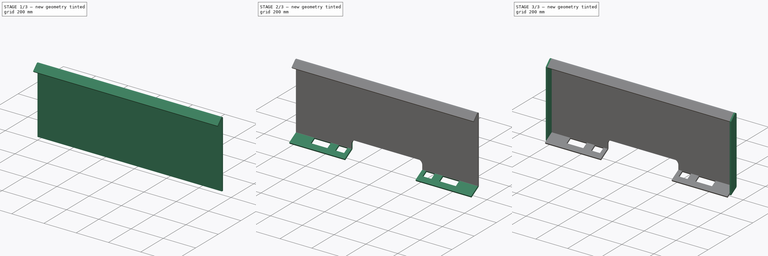
[diagram: build sequence overview — one tinted view per stage of 3, left to right]
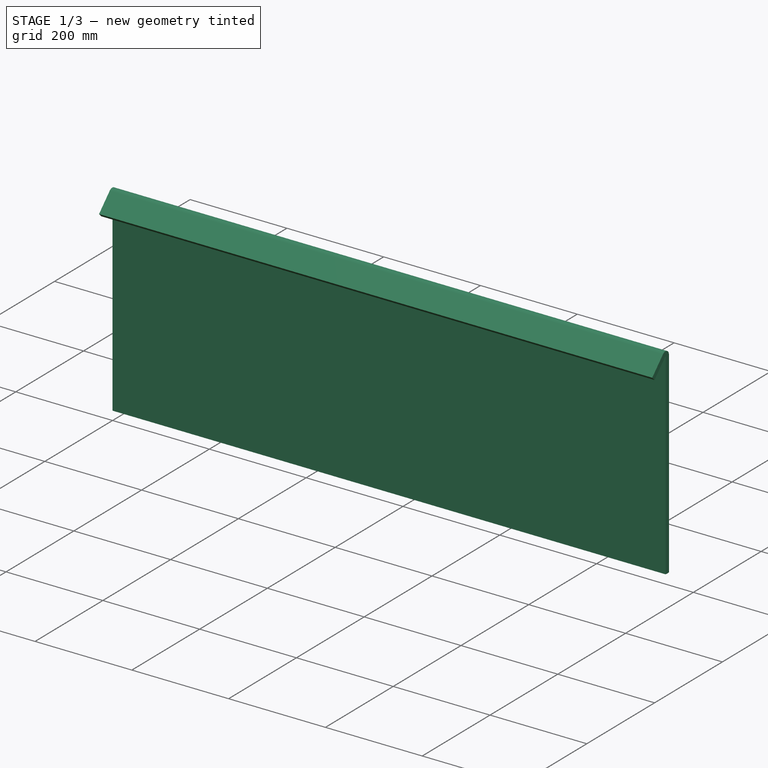
[diagram: stage 1 of 3 — iso view after this stage's code; geometry added in this stage tinted green]
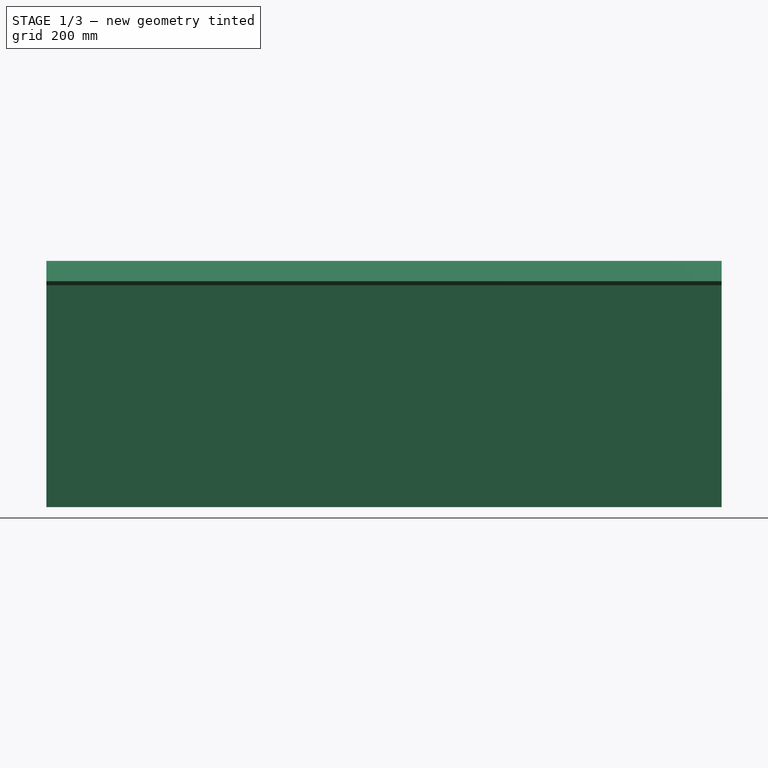
[diagram: stage 1 of 3 — front view after this stage's code; geometry added in this stage tinted green]
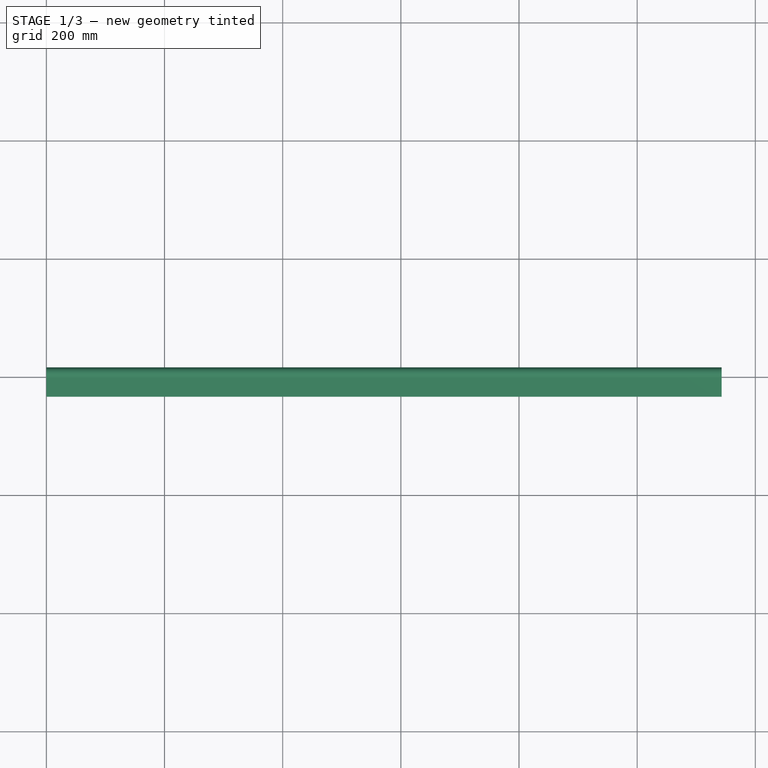
[diagram: stage 1 of 3 — top view after this stage's code; geometry added in this stage tinted green]
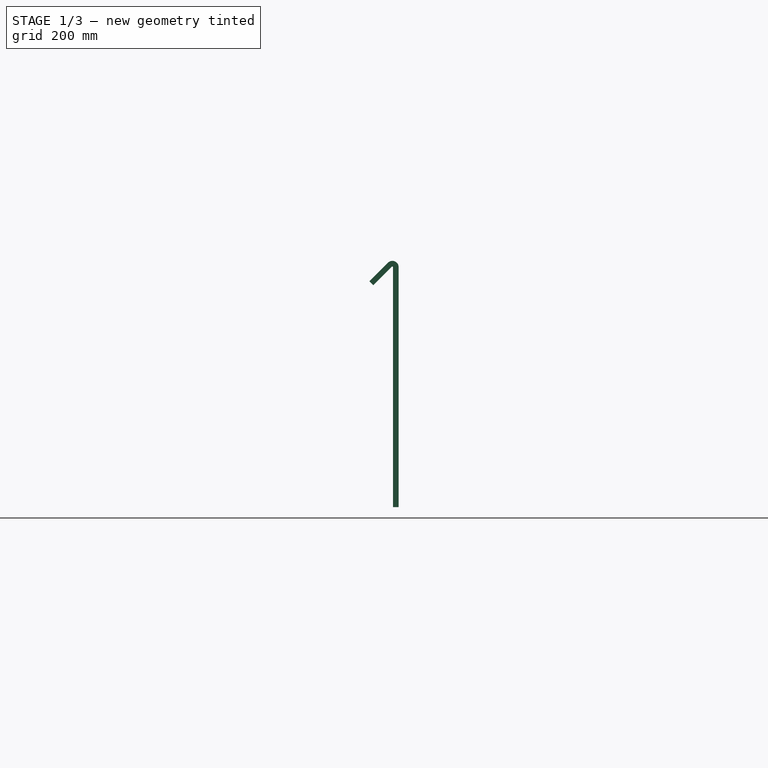
[diagram: stage 1 of 3 — right view after this stage's code; geometry added in this stage tinted green]
FCSTD DOCUMENT  (FreeCAD 0.16R6712 (Git))
Label: LT_45in_FQA
License: All rights reserved
LicenseURL: http://en.wikipedia.org/wiki/All_rights_reserved
objects: Sketcher::SketchObject×4, Part::FeaturePython×2, PartDesign::Pocket×2, PartDesign::Pad×2, Part::Box×1, Part::Feature×1
note: 16 computed .brp shape members not serialized (recipe doc carries the construction recipe); baked Part::Feature solids carry a one-line shape summary decoded from their .brp

FEATURE [Part::Box] Box  label="Cube"
  Height = 406.4
  Length = 1143
  Width = 9.525
FEATURE [Part::FeaturePython] Bend  # WARN: FeaturePython — macro-defined, semantics opaque (R4)
  angle = 135
  baseObject = -> Box [Face6]
  gap1 = 0
  gap2 = 0
  invert = true
  length = 44.45
  radius = 1
  reliefd = 0
  reliefw = 0
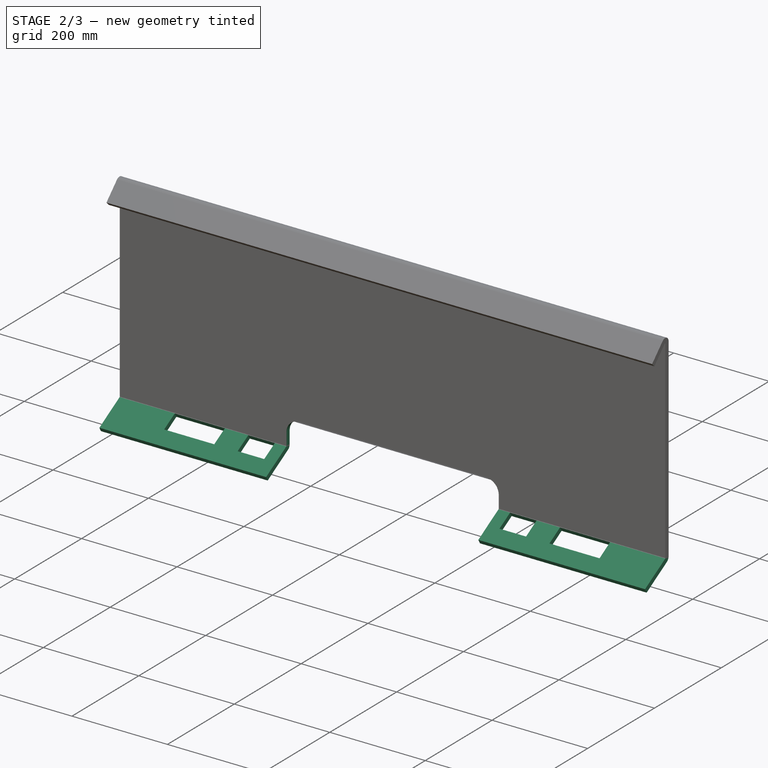
[diagram: stage 2 of 3 — iso view after this stage's code; geometry added in this stage tinted green]
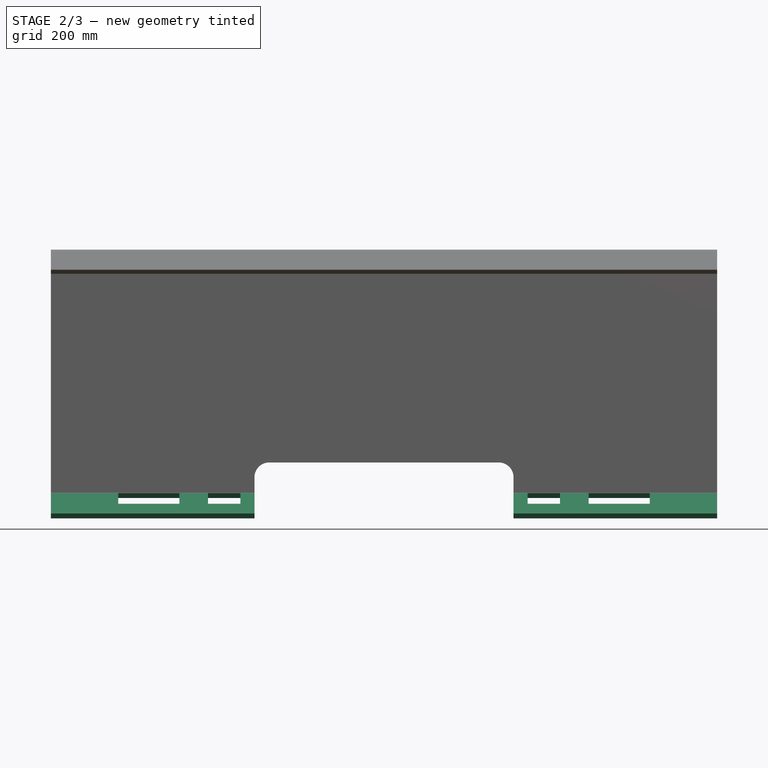
[diagram: stage 2 of 3 — front view after this stage's code; geometry added in this stage tinted green]
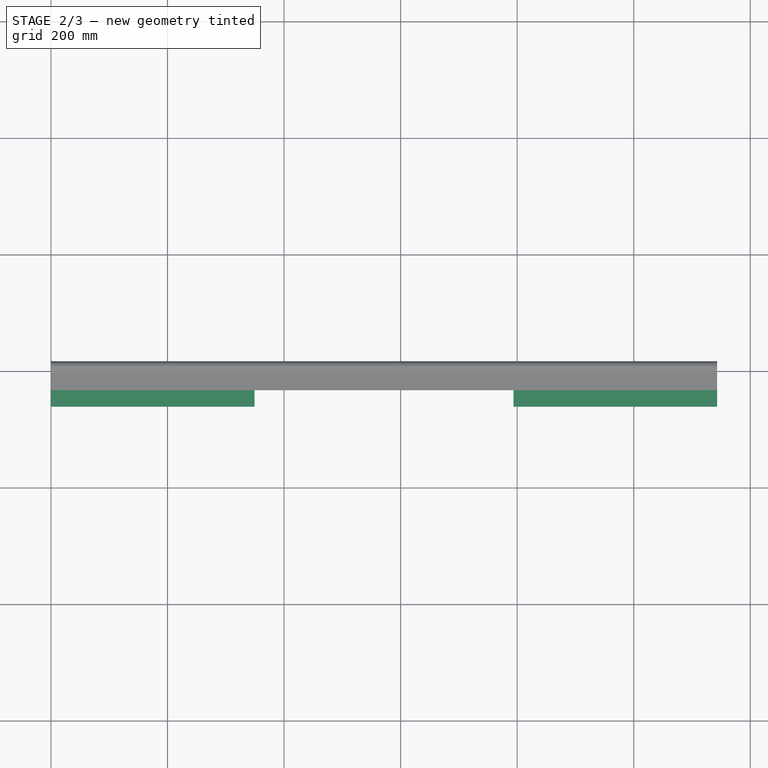
[diagram: stage 2 of 3 — top view after this stage's code; geometry added in this stage tinted green]
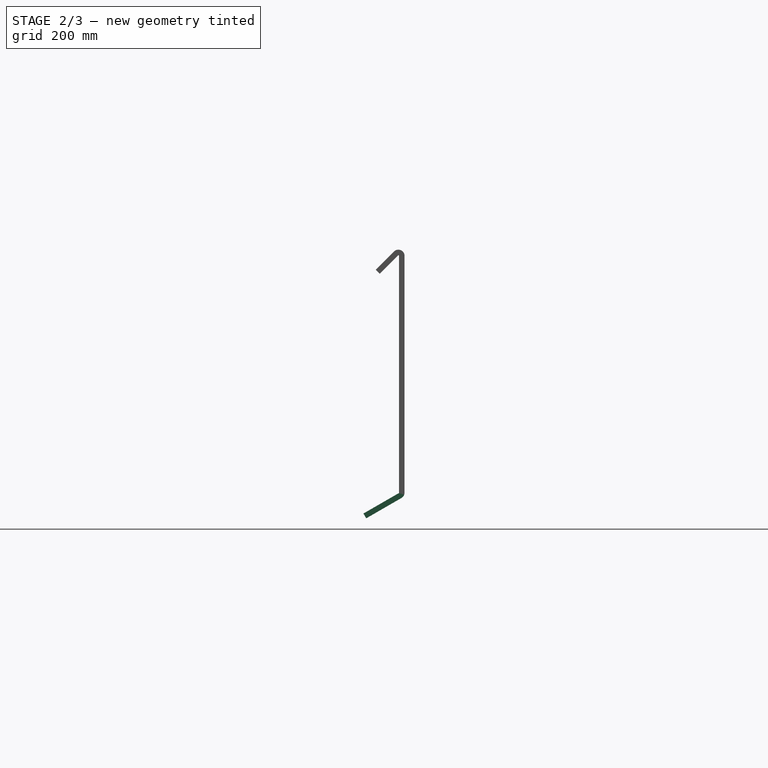
[diagram: stage 2 of 3 — right view after this stage's code; geometry added in this stage tinted green]
FEATURE [Part::FeaturePython] Bend001  # WARN: FeaturePython — macro-defined, semantics opaque (R4)
  angle = 60
  baseObject = -> Bend [Face14]
  gap1 = 0
  gap2 = 0
  invert = true
  length = 69.85
  radius = 0.999998
  reliefd = 0.999998
  reliefw = 0.5
FEATURE [Sketcher::SketchObject] Sketch003
  Placement = pos=(0,9.525,0) rot=(0,0.707107,0.707107;3.14159rad)
  Support = -> Bend001 [Face11]
  sketch-geometry (7):
    g0: LineSegment StartX=-768.35 StartY=51.816 StartZ=0 EndX=-374.65 EndY=51.816 EndZ=0
    g1: LineSegment StartX=-349.25 StartY=26.416 StartZ=0 EndX=-349.25 EndY=-134.146 EndZ=0
    g2: LineSegment StartX=-349.25 StartY=-134.146 StartZ=0 EndX=-793.75 EndY=-134.146 EndZ=0
    g3: LineSegment StartX=-793.75 StartY=-134.146 StartZ=0 EndX=-793.75 EndY=26.416 EndZ=0
    g4: LineSegment [constr] StartX=-571.5 StartY=335.734 StartZ=0 EndX=-571.5 EndY=-152.979 EndZ=0
    g5: ArcOfCircle CenterX=-768.35 CenterY=26.416 CenterZ=0 NormalX=0 NormalY=0 NormalZ=1 Radius=25.4 StartAngle=1.5708 EndAngle=3.14159
    g6: ArcOfCircle CenterX=-374.65 CenterY=26.416 CenterZ=0 NormalX=0 NormalY=0 NormalZ=1 Radius=25.4 StartAngle=0 EndAngle=1.5708
  constraints (17):
    c: Coincident(g1,g2)
    c: Coincident(g2,g3)
    c: Horizontal(g0)
    c: Horizontal(g2)
    c: Vertical(g1)
    c: Vertical(g3)
    c: Vertical(g4)
    c: Symmetric(g1,g2,g4)
    c: DistanceX(g2,g2) = 444.5
    c: DistanceX(g-2,g4) = -571.5
    c: Tangent(g0,g5) = 1.5708
    c: Tangent(g3,g5) = 1.5708
    c: Tangent(g0,g6) = 1.5708
    c: Tangent(g1,g6) = 1.5708
    c: Radius(g6) = 25.4
    c: Equal(g6,g5)
    c: DistanceY(g-1,g5) = 26.416
FEATURE [PartDesign::Pocket] Pocket
  Length = 106.6
  Sketch = -> Sketch003
  Type = 0
FEATURE [Sketcher::SketchObject] Sketch005
  ExternalGeometry = -> [Pocket]
  Placement = pos=(0,0.25,-0.433012) rot=(1,0,0;0.523599rad)
  Support = -> Pocket [Face4]
  sketch-geometry (17):
    g0: LineSegment StartX=115.57 StartY=-37.3785 StartZ=0 EndX=220.472 EndY=-37.3785 EndZ=0
    g1: LineSegment StartX=220.472 StartY=-37.3785 StartZ=0 EndX=220.472 EndY=-0.866024 EndZ=0
    g2: LineSegment StartX=220.472 StartY=-0.866024 StartZ=0 EndX=115.57 EndY=-0.866024 EndZ=0
    g3: LineSegment StartX=115.57 StartY=-0.866024 StartZ=0 EndX=115.57 EndY=-37.3785 EndZ=0
    g4: LineSegment StartX=269.494 StartY=-37.3785 StartZ=0 EndX=325.12 EndY=-37.3785 EndZ=0
    g5: LineSegment StartX=325.12 StartY=-37.3785 StartZ=0 EndX=325.12 EndY=-0.866024 EndZ=0
    g6: LineSegment StartX=325.12 StartY=-0.866024 StartZ=0 EndX=269.494 EndY=-0.866024 EndZ=0
    g7: LineSegment StartX=269.494 StartY=-0.866024 StartZ=0 EndX=269.494 EndY=-37.3785 EndZ=0
    g8: LineSegment StartX=817.88 StartY=-37.3785 StartZ=0 EndX=873.506 EndY=-37.3785 EndZ=0
    g9: LineSegment StartX=873.506 StartY=-37.3785 StartZ=0 EndX=873.506 EndY=-0.866024 EndZ=0
    g10: LineSegment StartX=873.506 StartY=-0.866024 StartZ=0 EndX=817.88 EndY=-0.866024 EndZ=0
    g11: LineSegment StartX=817.88 StartY=-0.866024 StartZ=0 EndX=817.88 EndY=-37.3785 EndZ=0
    g12: LineSegment StartX=922.528 StartY=-37.3785 StartZ=0 EndX=1027.43 EndY=-37.3785 EndZ=0
    g13: LineSegment StartX=1027.43 StartY=-37.3785 StartZ=0 EndX=1027.43 EndY=-0.866024 EndZ=0
    g14: LineSegment StartX=1027.43 StartY=-0.866024 StartZ=0 EndX=922.528 EndY=-0.866024 EndZ=0
    g15: LineSegment StartX=922.528 StartY=-0.866024 StartZ=0 EndX=922.528 EndY=-37.3785 EndZ=0
    g16: LineSegment [constr] StartX=571.5 StartY=-407.248 StartZ=0 EndX=571.5 EndY=227.752 EndZ=0
  constraints (49):
    c: Coincident(g0,g1)
    c: Coincident(g1,g2)
    c: Coincident(g2,g3)
    c: Coincident(g3,g0)
    c: Horizontal(g0)
    c: Horizontal(g2)
    c: Vertical(g1)
    c: Vertical(g3)
    c: Coincident(g4,g5)
    c: Coincident(g5,g6)
    c: Coincident(g6,g7)
    c: Coincident(g7,g4)
    c: Horizontal(g4)
    c: Horizontal(g6)
    c: Vertical(g5)
    c: Vertical(g7)
    c: Coincident(g8,g9)
    c: Coincident(g9,g10)
    c: Coincident(g10,g11)
    c: Coincident(g11,g8)
    c: Horizontal(g8)
    c: Horizontal(g10)
    c: Vertical(g9)
    c: Vertical(g11)
    c: Coincident(g12,g13)
    c: Coincident(g13,g14)
    c: Coincident(g14,g15)
    c: Coincident(g15,g12)
    c: Horizontal(g12)
    c: Horizontal(g14)
    c: Vertical(g13)
    c: Vertical(g15)
    c: Equal(g2,g14)
    c: Equal(g10,g6)
    c: Distance(g2) = 104.902
    c: Distance(g6) = 55.626
    c: DistanceX(g6,g10) = 548.386
    c: Equal(g5,g11)
    c: Equal(g1,g15)
    c: DistanceY(g3,g3) = 36.5125
    c: Equal(g1,g7)
    c: Symmetric(g4,g8,g16)
    c: Symmetric(g0,g12,g16)
    c: DistanceX(g2,g14) = 806.958
    c: Distance(g16) = 635
    c: Vertical(g16)
    c: DistanceX(g-2,g16) = 571.5
    c: PointOnObject(g13,g-3)
    c: PointOnObject(g9,g-3)
FEATURE [PartDesign::Pocket] Pocket001
  Length = 30.4
  Sketch = -> Sketch005
  Type = 0
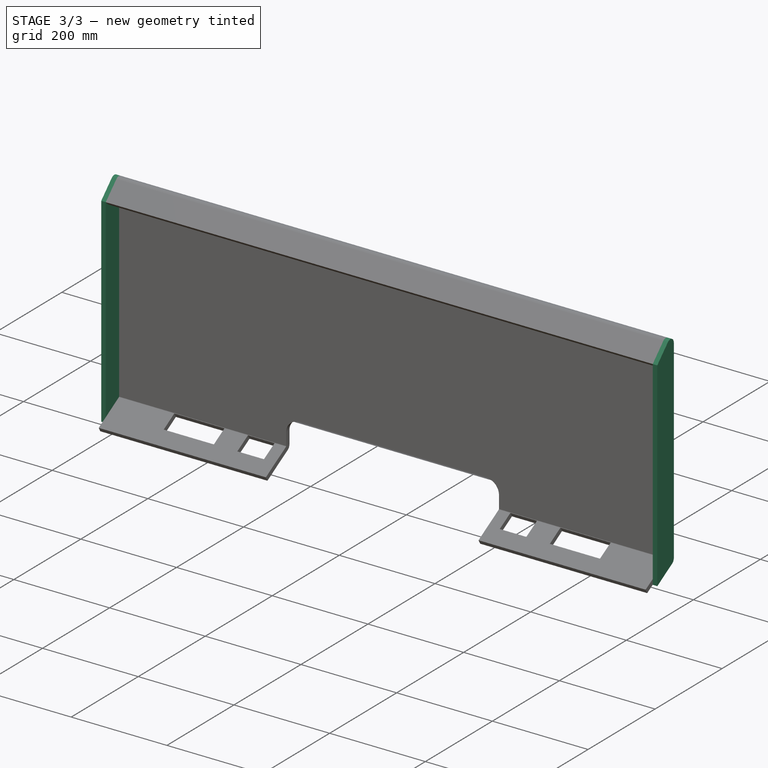
[diagram: stage 3 of 3 — iso view after this stage's code; geometry added in this stage tinted green]
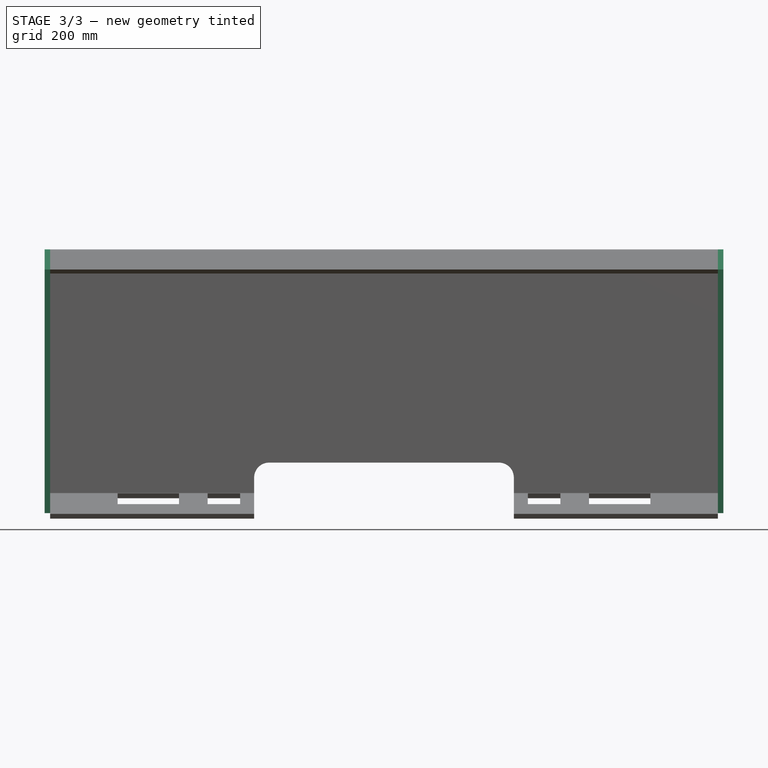
[diagram: stage 3 of 3 — front view after this stage's code; geometry added in this stage tinted green]
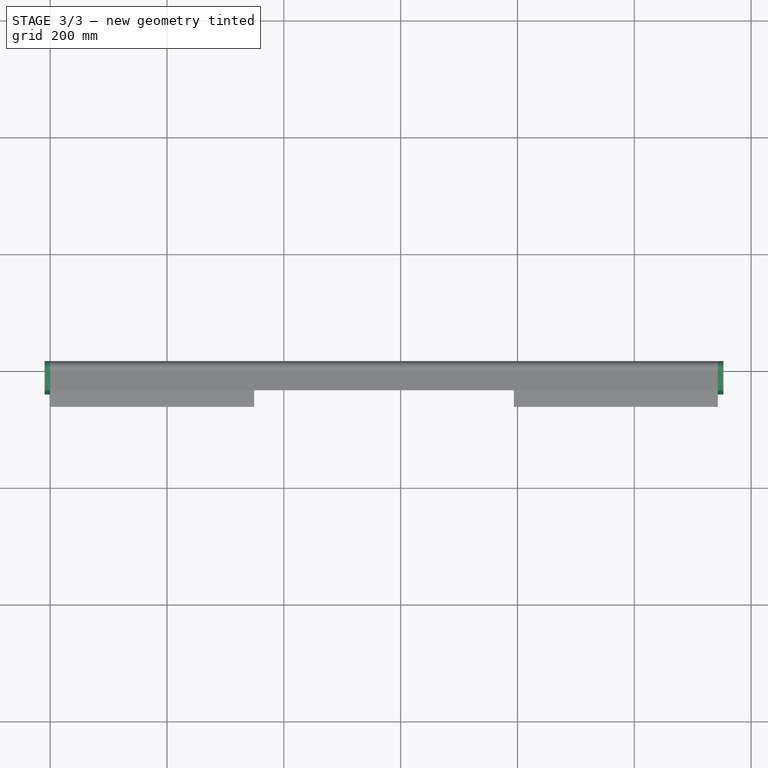
[diagram: stage 3 of 3 — top view after this stage's code; geometry added in this stage tinted green]
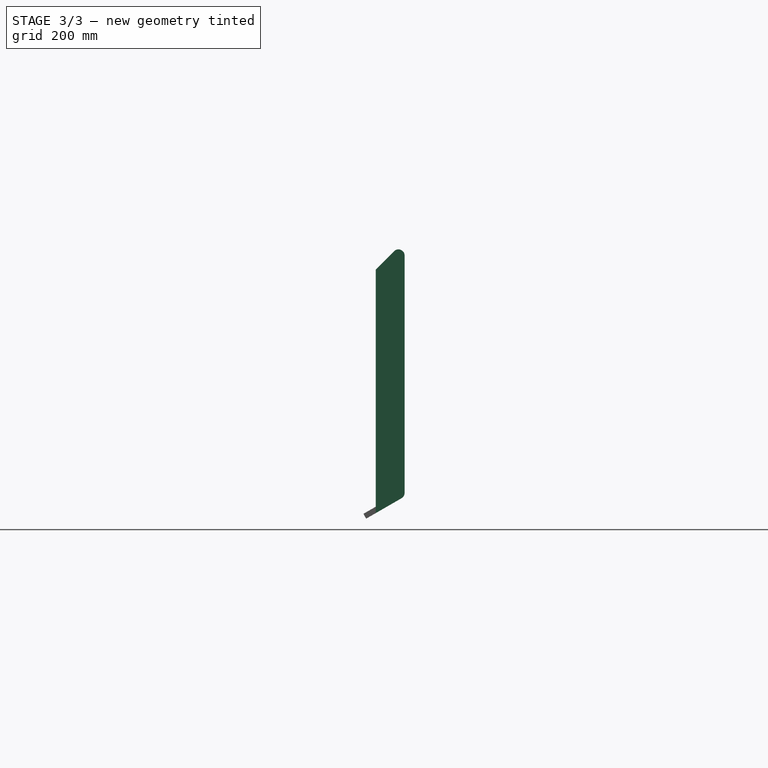
[diagram: stage 3 of 3 — right view after this stage's code; geometry added in this stage tinted green]
FEATURE [Sketcher::SketchObject] Sketch
  ExternalGeometry = -> [Pocket001]
  Placement = pos=(0,0,0) rot=(0.57735,-0.57735,-0.57735;2.0944rad)
  Support = -> Pocket001 [Face26]
  sketch-geometry (6):
    g0: LineSegment StartX=-9.525 StartY=406.4 StartZ=0 EndX=-9.525 EndY=1e-12 EndZ=0
    g1: ArcOfCircle CenterX=1 CenterY=406.4 CenterZ=0 NormalX=0 NormalY=0 NormalZ=1 Radius=10.525 StartAngle=0.785398 EndAngle=3.14159
    g2: ArcOfCircle CenterX=0.999998 CenterY=3.3462e-08 CenterZ=0 NormalX=0 NormalY=0 NormalZ=1 Radius=10.525 StartAngle=3.14159 EndAngle=4.18879
    g3: LineSegment StartX=8.4423 StartY=413.842 StartZ=0 EndX=39.8732 EndY=382.411 EndZ=0
    g4: LineSegment StartX=39.8732 StartY=382.411 StartZ=0 EndX=39.8732 EndY=-34.5967 EndZ=0
    g5: LineSegment StartX=-4.2625 StartY=-9.11492 StartZ=0 EndX=39.8732 EndY=-34.5967 EndZ=0
  constraints (8):
    c: Vertical(g0)
    c: Coincident(g1,g0)
    c: Coincident(g2,g0)
    c: Tangent(g1,g3) = 1.5708
    c: Coincident(g3,g4)
    c: Vertical(g4)
    c: Coincident(g5,g2)
    c: Coincident(g5,g4)
FEATURE [PartDesign::Pad] Pad
  Length = 9.525
  Length2 = 100
  Sketch = -> Sketch
  Type = 0
FEATURE [Sketcher::SketchObject] Sketch007
  Placement = pos=(1143,0,0) rot=(0.57735,0.57735,0.57735;2.0944rad)
  Support = -> Pad [Face26]
  sketch-geometry (6):
    g0: LineSegment StartX=9.525 StartY=406.4 StartZ=0 EndX=9.525 EndY=0 EndZ=0
    g1: LineSegment StartX=-8.4423 StartY=413.842 StartZ=0 EndX=-39.8732 EndY=382.411 EndZ=0
    g2: LineSegment StartX=-39.8732 StartY=382.411 StartZ=0 EndX=-39.8732 EndY=-34.5967 EndZ=0
    g3: LineSegment StartX=4.2625 StartY=-9.11492 StartZ=0 EndX=-39.8732 EndY=-34.5967 EndZ=0
    g4: ArcOfCircle CenterX=-1 CenterY=406.4 CenterZ=0 NormalX=0 NormalY=0 NormalZ=1 Radius=10.525 StartAngle=0 EndAngle=2.35619
    g5: ArcOfCircle CenterX=-0.999998 CenterY=0 CenterZ=0 NormalX=0 NormalY=0 NormalZ=1 Radius=10.525 StartAngle=5.23599 EndAngle=6.28319
  constraints (8):
    c: Vertical(g0)
    c: Coincident(g1,g2)
    c: Vertical(g2)
    c: Coincident(g3,g2)
    c: Coincident(g4,g0)
    c: Coincident(g4,g1)
    c: Coincident(g5,g3)
    c: PointOnObject(g0,g-1)
FEATURE [PartDesign::Pad] Pad001
  Length = 9.525
  Length2 = 100
  Sketch = -> Sketch007
  Type = 0
FEATURE [Part::Feature] Pad001001  label="Pad002"
  Placement = pos=(1524,0,0) rot=(0,0,1;0rad)
  shape: bbox 1162 x 70.52 x 461 mm, 56 faces (baked)
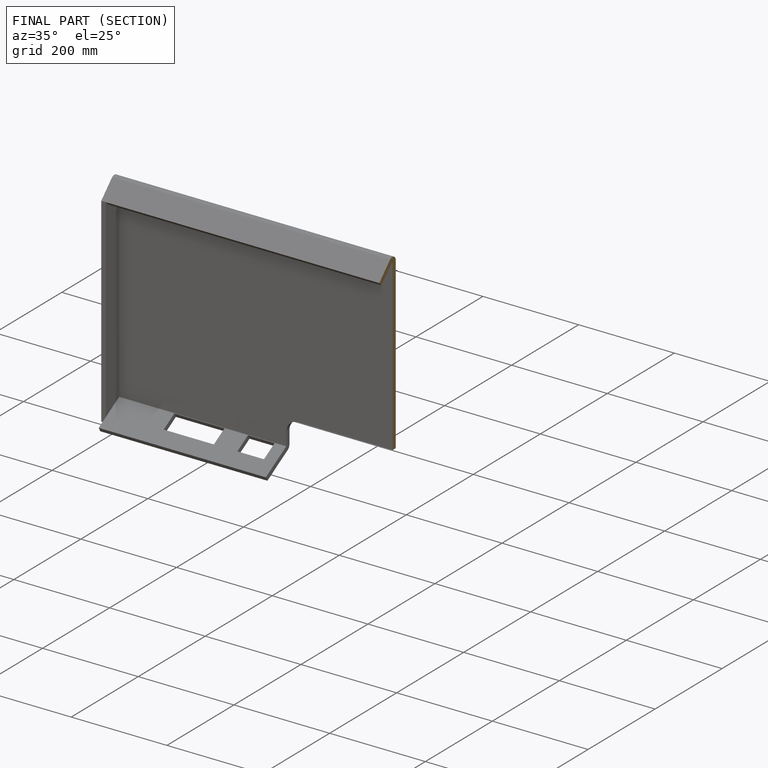
[diagram: finished part — half-section view (interior)]
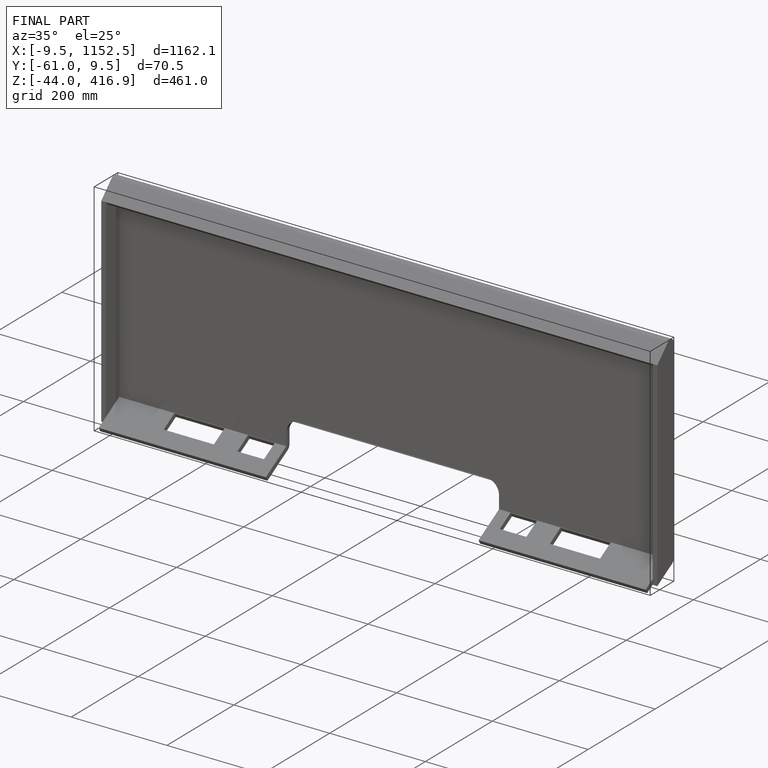
[diagram: finished part — iso view with bounding-box wireframe]
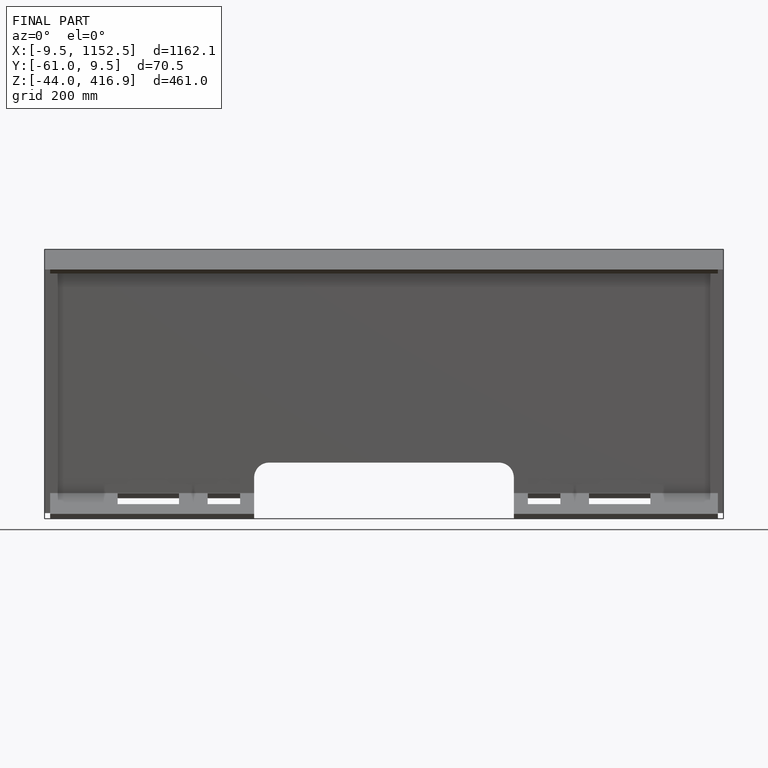
[diagram: finished part — front view with bounding-box wireframe]
